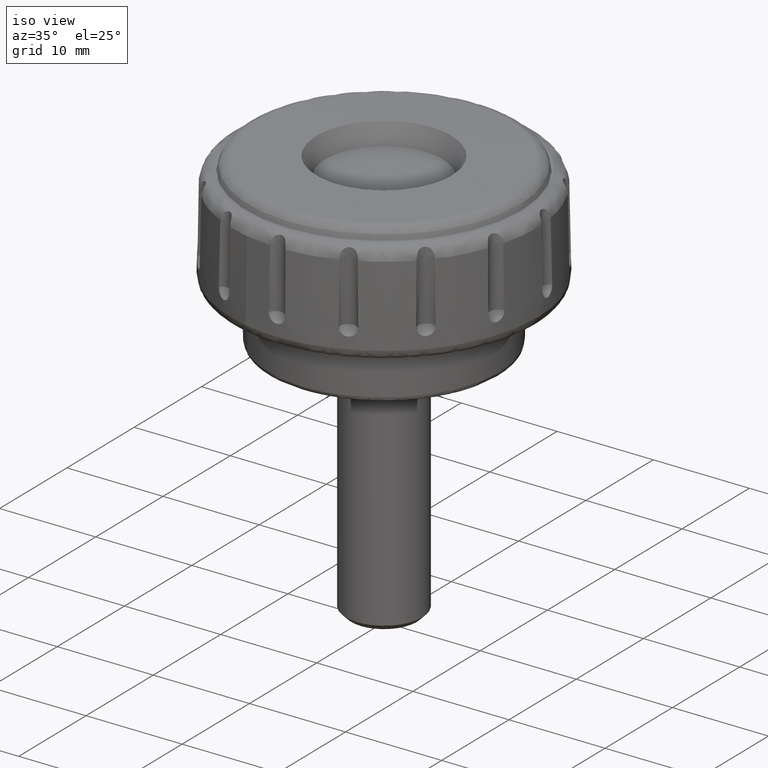
[diagram: clean part render]
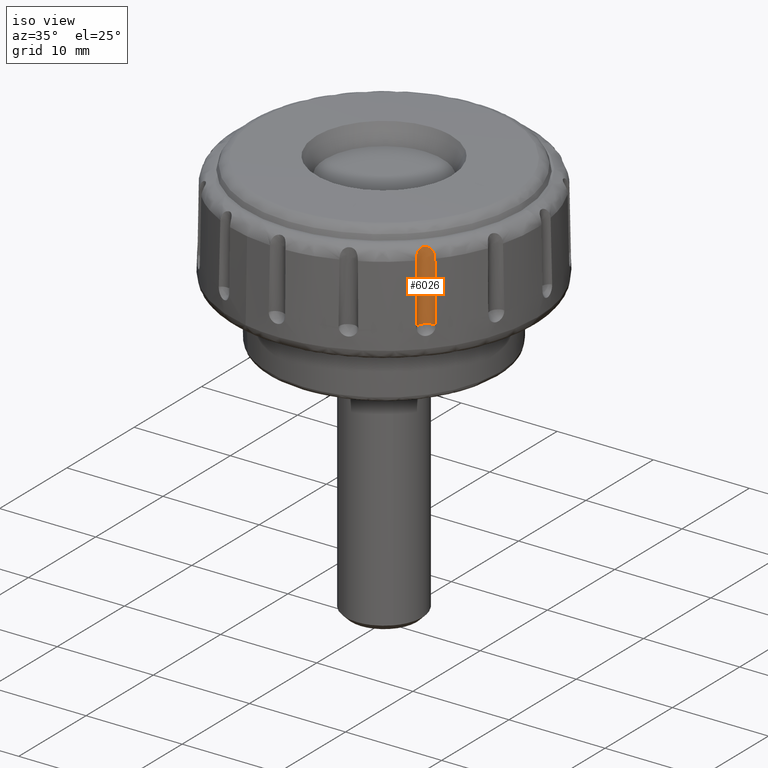
[diagram: same view with one face highlighted and labeled with its STEP entity id]
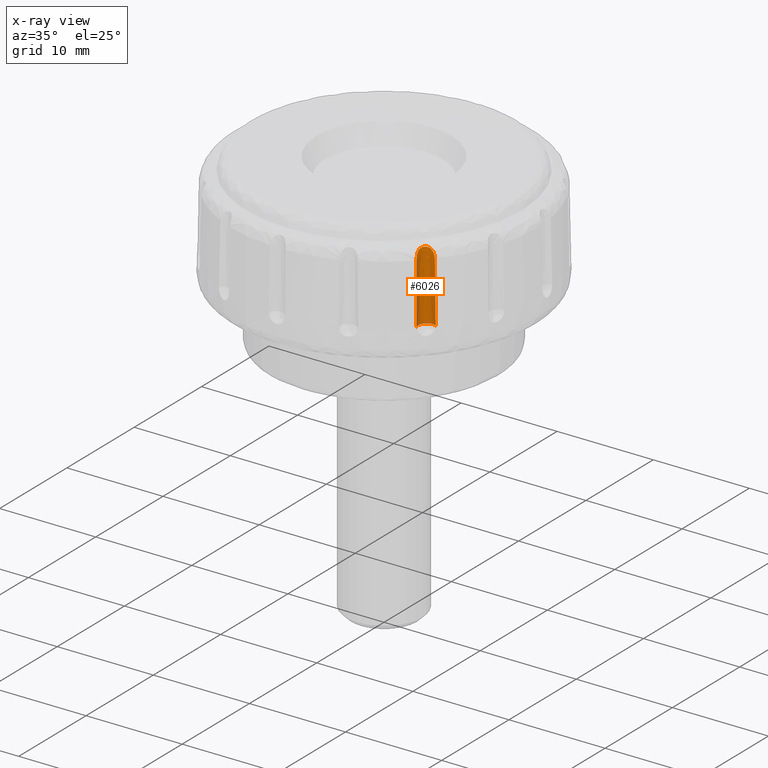
[diagram: x-ray of the same camera — body ghosted, the highlighted face saturated]
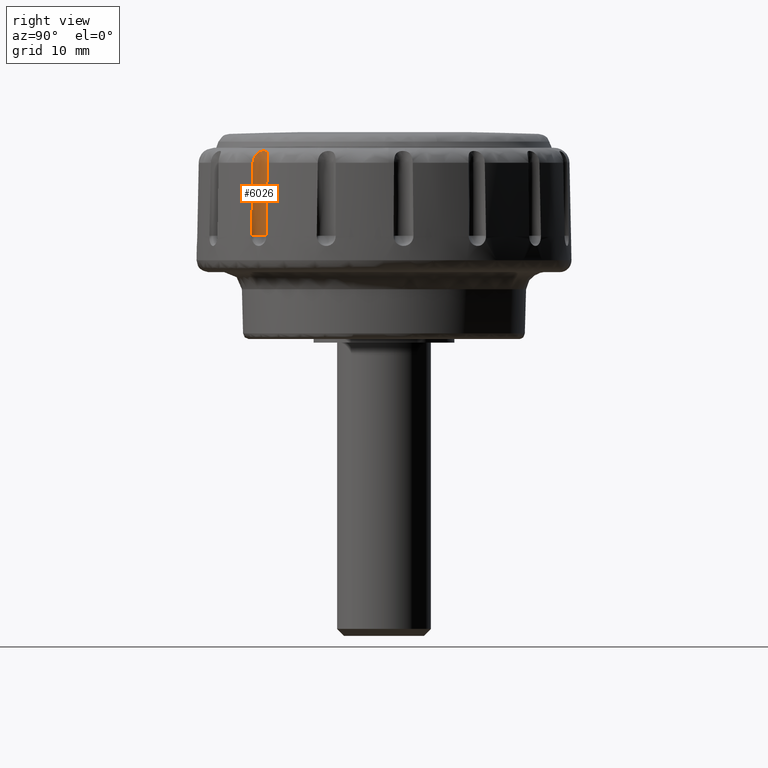
[diagram: same view with one face highlighted and labeled with its STEP entity id]
A machine part, iso view. The second image highlights one B-rep face of the part: STEP entity #6026.
The next image is the same camera in x-ray: the body ghosted, the highlighted face saturated — about 0% of this face is hidden behind the body in this view.
A second angle (right view) of the same face is appended — the face is thin or edge-on in the first view.
In plain terms, the highlighted face is a freeform B-spline surface patch.
Its self-contained STEP definition (entity closure, byte-faithful):
#2634=CARTESIAN_POINT('',(12.271246613397359,-9.970410814209242,15.326313504426750));
#2635=VERTEX_POINT('',#2634);
#2644=CARTESIAN_POINT('',(12.397757039512140,-10.014533199186999,9.099991000000141));
#2645=VERTEX_POINT('',#2644);
#2646=CARTESIAN_POINT('',(12.397757039512140,-10.014533199186999,9.099991000000141));
#2647=CARTESIAN_POINT('',(12.271246613397359,-9.970410814209242,15.326313504426750));
#2648=QUASI_UNIFORM_CURVE('',1,(#2646,#2647),.UNSPECIFIED.,.F.,.U.);
#2649=EDGE_CURVE('',#2645,#2635,#2648,.T.);
#2651=CARTESIAN_POINT('',(11.255591029789880,-11.283037063597041,9.099991000000120));
#2652=VERTEX_POINT('',#2651);
#2703=CARTESIAN_POINT('',(11.198486411424520,-11.161831719930960,15.326313504426750));
#2704=VERTEX_POINT('',#2703);
#2705=CARTESIAN_POINT('',(11.198486411424520,-11.161831719930960,15.326313504426750));
#2706=CARTESIAN_POINT('',(11.255591029789880,-11.283037063597041,9.099991000000120));
#2707=QUASI_UNIFORM_CURVE('',1,(#2705,#2706),.UNSPECIFIED.,.F.,.U.);
#2708=EDGE_CURVE('',#2704,#2652,#2707,.T.);
#4828=CARTESIAN_POINT('',(12.271246613397350,-9.970410814209242,15.326313504426750));
#4829=CARTESIAN_POINT('',(12.269832612393030,-9.970033039539928,15.392275721103600));
#4830=CARTESIAN_POINT('',(12.263183566240510,-9.968210842442472,15.457215844345260));
#4831=CARTESIAN_POINT('',(12.239421441064010,-9.962441163719472,15.585084659193910));
#4832=CARTESIAN_POINT('',(12.222256890379700,-9.958469375442537,15.648165348789490));
#4833=CARTESIAN_POINT('',(12.176189127620001,-9.950131990076338,15.771480120165689));
#4834=CARTESIAN_POINT('',(12.147865673067590,-9.945878181557093,15.830187260820820));
#4835=CARTESIAN_POINT('',(12.096874656167589,-9.941618236730893,15.913622888200100));
#4836=CARTESIAN_POINT('',(12.078451940227820,-9.940560003663867,15.940659858825740));
#4837=CARTESIAN_POINT('',(12.038553425858630,-9.939692726999294,15.993099398981199));
#4838=CARTESIAN_POINT('',(12.017146807557040,-9.939897584662720,16.018370617664161));
#4839=CARTESIAN_POINT('',(11.949856251484791,-9.943208341325903,16.089836993467149));
#4840=CARTESIAN_POINT('',(11.900305488146200,-9.948972229423386,16.132419336099559));
#4841=CARTESIAN_POINT('',(11.793330145283440,-9.972347453036669,16.206696576304662));
#4842=CARTESIAN_POINT('',(11.738166742829860,-9.989487470026182,16.236916716465391));
#4843=CARTESIAN_POINT('',(11.654483334170640,-10.025596301730690,16.273372733730451));
#4844=CARTESIAN_POINT('',(11.626188056869189,-10.039517575540589,16.284103694936640));
#4845=CARTESIAN_POINT('',(11.570987004692039,-10.070486842785430,16.302198413553519));
#4846=CARTESIAN_POINT('',(11.544054144010151,-10.087506828887500,16.309608231862111));
#4847=CARTESIAN_POINT('',(11.491664224249590,-10.124709581683049,16.321470491403620));
#4848=CARTESIAN_POINT('',(11.466206281996140,-10.144890901251109,16.325923424713800));
#4849=CARTESIAN_POINT('',(11.416925854640610,-10.188623728520280,16.331938362176238));
#4850=CARTESIAN_POINT('',(11.393495628776771,-10.211847844334820,16.333442616285971));
#4851=CARTESIAN_POINT('',(11.349596570569380,-10.260370382634269,16.333568197326361));
#4852=CARTESIAN_POINT('',(11.329026915059670,-10.285757737606801,16.332201752975379));
#4853=CARTESIAN_POINT('',(11.290651650666010,-10.338785298601310,16.326516220408561));
#4854=CARTESIAN_POINT('',(11.272772986402090,-10.366599598147969,16.322144624058801));
#4855=CARTESIAN_POINT('',(11.240800144674150,-10.422767845520379,16.310487336771359));
#4856=CARTESIAN_POINT('',(11.226564995841841,-10.451284916437880,16.303198625291220));
#4857=CARTESIAN_POINT('',(11.201385349797050,-10.509024743569700,16.285489112634899));
#4858=CARTESIAN_POINT('',(11.190400123002160,-10.538384834999780,16.275010779707209));
#4859=CARTESIAN_POINT('',(11.162487409330680,-10.626350456073441,16.238602871068771));
#4860=CARTESIAN_POINT('',(11.150995235382160,-10.683256656981611,16.208460699983149));
#4861=CARTESIAN_POINT('',(11.141666159593409,-10.764806078476960,16.153291029476751));
#4862=CARTESIAN_POINT('',(11.139912129026520,-10.791248157617710,16.133261844905380));
#4863=CARTESIAN_POINT('',(11.138596983675200,-10.841292814977370,16.090859748792749));
#4864=CARTESIAN_POINT('',(11.139012390939451,-10.865085097365689,16.068364298256721));
#4865=CARTESIAN_POINT('',(11.141408702625570,-10.910205238328940,16.020775310077280));
#4866=CARTESIAN_POINT('',(11.143405593401720,-10.931636172609760,15.995538181463870));
#4867=CARTESIAN_POINT('',(11.148378225390250,-10.971422860914631,15.943208481862390));
#4868=CARTESIAN_POINT('',(11.151340704828680,-10.989768820165031,15.916170960119119));
#4869=CARTESIAN_POINT('',(11.157716803812390,-11.023584063516999,15.860425718516611));
#4870=CARTESIAN_POINT('',(11.161131744313771,-11.039052995307101,15.831717933635810));
#4871=CARTESIAN_POINT('',(11.168009674878810,-11.067255342106529,15.772672126267009));
#4872=CARTESIAN_POINT('',(11.171479956334110,-11.080004253626189,15.742256066367601));
#4873=CARTESIAN_POINT('',(11.181292735896131,-11.113744337750070,15.650174610634011));
#4874=CARTESIAN_POINT('',(11.187068074920120,-11.130536782831980,15.587218446226860));
#4875=CARTESIAN_POINT('',(11.195410675795340,-11.153929469389130,15.458347906808450));
#4876=CARTESIAN_POINT('',(11.197962224875891,-11.160463183024509,15.392361151363779));
#4877=CARTESIAN_POINT('',(11.198486411424520,-11.161831719930960,15.326313504426750));
#4878=B_SPLINE_CURVE_WITH_KNOTS('',3,(#4828,#4829,#4830,#4831,#4832,#4833,#4834,#4835,#4836,#4837,#4838,#4839,#4840,#4841,#4842,#4843,#4844,#4845,#4846,#4847,#4848,#4849,#4850,#4851,#4852,#4853,#4854,#4855,#4856,#4857,#4858,#4859,#4860,#4861,#4862,#4863,#4864,#4865,#4866,#4867,#4868,#4869,#4870,#4871,#4872,#4873,#4874,#4875,#4876,#4877),.UNSPECIFIED.,.F.,.U.,(4,2,2,2,2,2,2,2,2,2,2,2,2,2,2,2,2,2,2,2,2,2,2,2,4),(0.0,0.062499999999999,0.124999999999997,0.187499999999996,0.218749999999995,0.249999999999995,0.312499999999993,0.374999999999992,0.406249999999991,0.437499999999991,0.468749999999990,0.499999999999990,0.531249999999989,0.562499999999989,0.593749999999988,0.624999999999988,0.687499999999988,0.718749999999989,0.749999999999990,0.781249999999991,0.812499999999992,0.843749999999993,0.874999999999995,0.937499999999997,1.0),.UNSPECIFIED.);
#4879=EDGE_CURVE('',#2635,#2704,#4878,.T.);
#5639=CARTESIAN_POINT('',(12.397757039512140,-10.014533199186999,9.099991000000141));
#5640=CARTESIAN_POINT('',(12.290502451341959,-9.967761086589860,9.099991000000134));
#5641=CARTESIAN_POINT('',(12.121601757608611,-9.931075711598426,9.099991000000152));
#5642=CARTESIAN_POINT('',(11.893116293397620,-9.946574594068864,9.099991000000143));
#5643=CARTESIAN_POINT('',(11.722404560541010,-9.990675631367827,9.099991000000154));
#5644=CARTESIAN_POINT('',(11.532394395842591,-10.084213492781309,9.099991000000122));
#5645=CARTESIAN_POINT('',(11.344233501146100,-10.246230818682770,9.099991000000184));
#5646=CARTESIAN_POINT('',(11.215821813415140,-10.452221675122059,9.099991000000079));
#5647=CARTESIAN_POINT('',(11.143657211422910,-10.682144005605300,9.099991000000186));
#5648=CARTESIAN_POINT('',(11.130460902380250,-10.900494159049030,9.099991000000152));
#5649=CARTESIAN_POINT('',(11.174385050446460,-11.113933623551519,9.099991000000085));
#5650=CARTESIAN_POINT('',(11.226791295385050,-11.232133220145769,9.099991000000136));
#5651=CARTESIAN_POINT('',(11.255591029789880,-11.283037063597041,9.099991000000120));
#5652=B_SPLINE_CURVE_WITH_KNOTS('',3,(#5639,#5640,#5641,#5642,#5643,#5644,#5645,#5646,#5647,#5648,#5649,#5650,#5651),.UNSPECIFIED.,.F.,.U.,(4,1,1,1,1,1,1,1,1,1,4),(0.000000141596889,0.350956559789015,0.508889895453333,0.684377764325379,0.877413570336269,1.140601976063646,1.421373359475127,1.596861535578775,1.860086772456223,2.070679232452408,2.246141144515187),.UNSPECIFIED.);
#5653=EDGE_CURVE('',#2645,#2652,#5652,.T.);
#6002=CARTESIAN_POINT('',(12.404946090257891,-10.017695822373151,16.514345387052781));
#6003=CARTESIAN_POINT('',(12.404946090257891,-10.017695822373151,8.914632140323803));
#6004=CARTESIAN_POINT('',(11.796536780065892,-9.746868480246977,16.514345387052785));
#6005=CARTESIAN_POINT('',(11.796536780065892,-9.746868480246977,8.914632140323803));
#6006=CARTESIAN_POINT('',(11.359661637555790,-10.249510945452821,16.514345387052781));
#6007=CARTESIAN_POINT('',(11.359661637555790,-10.249510945452821,8.914632140323803));
#6008=CARTESIAN_POINT('',(10.922786495045688,-10.752153410658661,16.514345387052785));
#6009=CARTESIAN_POINT('',(10.922786495045688,-10.752153410658661,8.914632140323803));
#6010=CARTESIAN_POINT('',(11.275735944904349,-11.316897621621370,16.514345387052781));
#6011=CARTESIAN_POINT('',(11.275735944904349,-11.316897621621370,8.914632140323803));
#6019=(BOUNDED_SURFACE()B_SPLINE_SURFACE(1,2,((#6002,#6004,#6006,#6008,#6010),(#6003,#6005,#6007,#6009,#6011)),.UNSPECIFIED.,.F.,.F.,.U.)B_SPLINE_SURFACE_WITH_KNOTS((2,2),(3,2,3),(0.0,7.599713246728978),(0.0,1.0,2.0),.UNSPECIFIED.)GEOMETRIC_REPRESENTATION_ITEM()RATIONAL_B_SPLINE_SURFACE(((1.0,0.803856860617218,1.0,0.803856860617218,1.0),(1.0,0.803856860617218,1.0,0.803856860617218,1.0)))REPRESENTATION_ITEM('')SURFACE());
#6020=ORIENTED_EDGE('',*,*,#2708,.T.);
#6021=ORIENTED_EDGE('',*,*,#5653,.F.);
#6022=ORIENTED_EDGE('',*,*,#2649,.T.);
#6023=ORIENTED_EDGE('',*,*,#4879,.T.);
#6024=EDGE_LOOP('',(#6020,#6021,#6022,#6023));
#6025=FACE_OUTER_BOUND('',#6024,.T.);
#6026=ADVANCED_FACE('',(#6025),#6019,.F.);